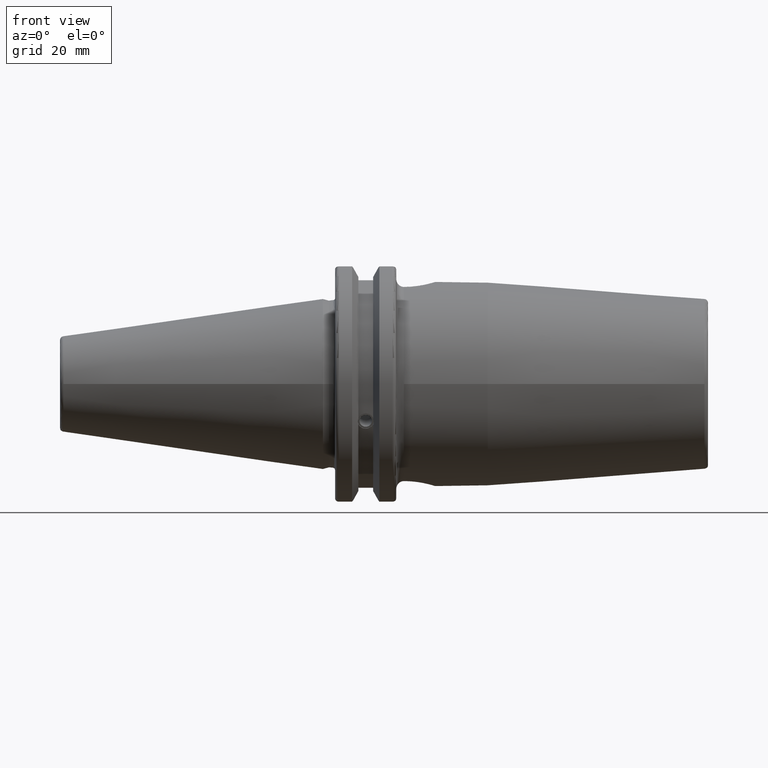
[diagram: clean part render]
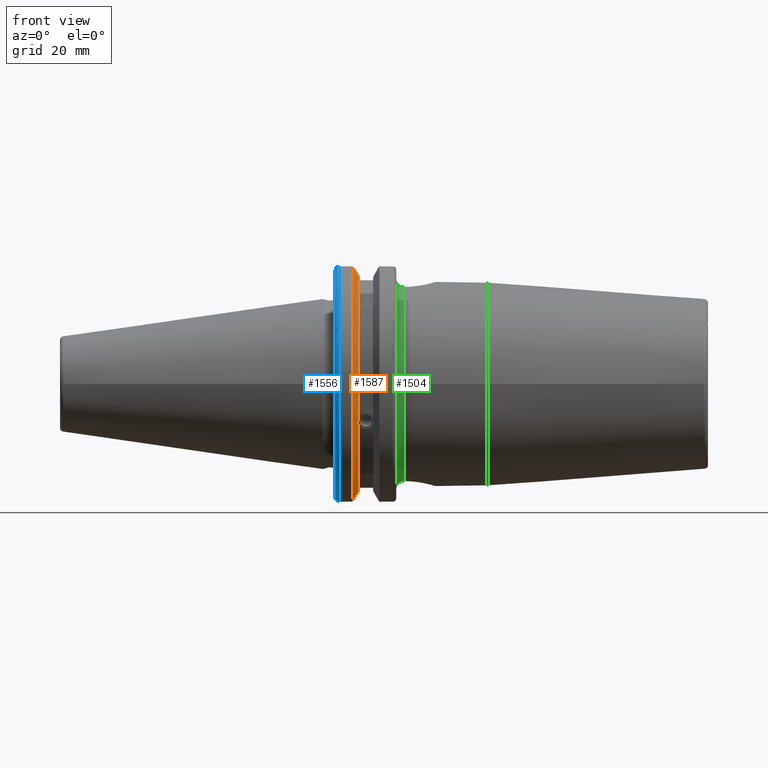
[diagram: same view with three faces highlighted in distinct colors, each labeled with its STEP entity id]
A machine part, front view with three faces highlighted in distinct colors.
Their STEP definitions:

[orange] entity #1587 — the highlighted conical surface has half-angle 60 deg.
#25=(
BOUNDED_CURVE()
B_SPLINE_CURVE(2,(#2951,#2952,#2953),.UNSPECIFIED.,.F.,.F.)
B_SPLINE_CURVE_WITH_KNOTS((3,3),(0.,0.276549142796136),.UNSPECIFIED.)
CURVE()
GEOMETRIC_REPRESENTATION_ITEM()
RATIONAL_B_SPLINE_CURVE((1.,1.00095203903316,1.00031614444813))
REPRESENTATION_ITEM('')
);
#26=(
BOUNDED_CURVE()
B_SPLINE_CURVE(2,(#2963,#2964,#2965),.UNSPECIFIED.,.F.,.F.)
B_SPLINE_CURVE_WITH_KNOTS((3,3),(0.0550586467392022,0.33160778953585),
 .UNSPECIFIED.)
CURVE()
GEOMETRIC_REPRESENTATION_ITEM()
RATIONAL_B_SPLINE_CURVE((1.00031614445148,1.00095203904325,1.))
REPRESENTATION_ITEM('')
);
#27=(
BOUNDED_CURVE()
B_SPLINE_CURVE(2,(#2998,#2999,#3000),.UNSPECIFIED.,.F.,.F.)
B_SPLINE_CURVE_WITH_KNOTS((3,3),(0.,0.0639048713676282),.UNSPECIFIED.)
CURVE()
GEOMETRIC_REPRESENTATION_ITEM()
RATIONAL_B_SPLINE_CURVE((1.,1.00028444218284,1.00047644010574))
REPRESENTATION_ITEM('')
);
#28=(
BOUNDED_CURVE()
B_SPLINE_CURVE(2,(#3006,#3007,#3008),.UNSPECIFIED.,.F.,.F.)
B_SPLINE_CURVE_WITH_KNOTS((3,3),(0.329353533631205,0.393258405001025),
 .UNSPECIFIED.)
CURVE()
GEOMETRIC_REPRESENTATION_ITEM()
RATIONAL_B_SPLINE_CURVE((1.00047644010572,1.00028444218283,1.))
REPRESENTATION_ITEM('')
);
#110=CONICAL_SURFACE('',#1790,30.3546886482472,1.0471975511966);
#205=FACE_OUTER_BOUND('',#307,.T.);
#307=EDGE_LOOP('',(#1459,#1460,#1461,#1462,#1463,#1464,#1465,#1466));
#342=CIRCLE('',#1684,28.9593772964944);
#366=CIRCLE('',#1744,31.75);
#384=CIRCLE('',#1791,28.9593772964944);
#575=B_SPLINE_CURVE_WITH_KNOTS('',3,(#2569,#2570,#2571,#2572,#2573,#2574,
#2575,#2576,#2577,#2578,#2579,#2580,#2581,#2582),.UNSPECIFIED.,.F.,.F.,
(4,2,2,2,2,2,4),(0.451995700189024,0.464547828547663,0.504528771685167,
0.544509714822672,0.584490657960178,0.624471601097683,0.63702372945632),
 .UNSPECIFIED.);
#653=VERTEX_POINT('',#2566);
#654=VERTEX_POINT('',#2568);
#671=VERTEX_POINT('',#2661);
#729=VERTEX_POINT('',#2948);
#730=VERTEX_POINT('',#2950);
#733=VERTEX_POINT('',#2962);
#737=VERTEX_POINT('',#2996);
#738=VERTEX_POINT('',#3002);
#830=EDGE_CURVE('',#654,#653,#575,.T.);
#854=EDGE_CURVE('',#654,#671,#342,.T.);
#937=EDGE_CURVE('',#730,#729,#25,.T.);
#943=EDGE_CURVE('',#733,#671,#26,.T.);
#951=EDGE_CURVE('',#737,#729,#27,.T.);
#953=EDGE_CURVE('',#737,#738,#366,.T.);
#954=EDGE_CURVE('',#733,#738,#28,.T.);
#994=EDGE_CURVE('',#730,#653,#384,.T.);
#1459=ORIENTED_EDGE('',*,*,#830,.T.);
#1460=ORIENTED_EDGE('',*,*,#994,.F.);
#1461=ORIENTED_EDGE('',*,*,#937,.T.);
#1462=ORIENTED_EDGE('',*,*,#951,.F.);
#1463=ORIENTED_EDGE('',*,*,#953,.T.);
#1464=ORIENTED_EDGE('',*,*,#954,.F.);
#1465=ORIENTED_EDGE('',*,*,#943,.T.);
#1466=ORIENTED_EDGE('',*,*,#854,.F.);
#1587=ADVANCED_FACE('',(#205),#110,.T.);
#1684=AXIS2_PLACEMENT_3D('',#2662,#1969,#1970);
#1744=AXIS2_PLACEMENT_3D('',#3004,#2128,#2129);
#1790=AXIS2_PLACEMENT_3D('',#3116,#2237,#2238);
#1791=AXIS2_PLACEMENT_3D('',#3117,#2239,#2240);
#1969=DIRECTION('center_axis',(1.,0.,0.));
#1970=DIRECTION('ref_axis',(0.,0.,-1.));
#2128=DIRECTION('center_axis',(1.,0.,0.));
#2129=DIRECTION('ref_axis',(0.,0.,-1.));
#2237=DIRECTION('center_axis',(-1.,0.,0.));
#2238=DIRECTION('ref_axis',(0.,-1.,-1.22464679914735E-16));
#2239=DIRECTION('center_axis',(1.,0.,0.));
#2240=DIRECTION('ref_axis',(0.,0.,-1.));
#2566=CARTESIAN_POINT('',(9.2191,-27.4956274489925,-9.09043478536245));
#2568=CARTESIAN_POINT('',(9.2191,-26.9060914640648,-10.7101715919071));
#2569=CARTESIAN_POINT('Ctrl Pts',(9.2191,-26.9060914640648,-10.7101715919071));
#2570=CARTESIAN_POINT('Ctrl Pts',(9.20497959280038,-26.9406927482839,-10.6893765730703));
#2571=CARTESIAN_POINT('Ctrl Pts',(9.19150701821433,-26.9744191989197,-10.6676007180673));
#2572=CARTESIAN_POINT('Ctrl Pts',(9.13811855884095,-27.1113422433189,-10.5723885976054));
#2573=CARTESIAN_POINT('Ctrl Pts',(9.09998029158246,-27.2180531796526,-10.4801333026531));
#2574=CARTESIAN_POINT('Ctrl Pts',(9.04778935539424,-27.3968610665578,-10.2639559818059));
#2575=CARTESIAN_POINT('Ctrl Pts',(9.0341,-27.4684373304961,-10.139516340139));
#2576=CARTESIAN_POINT('Ctrl Pts',(9.0341,-27.559599249844,-9.8890510252165));
#2577=CARTESIAN_POINT('Ctrl Pts',(9.04778935539424,-27.5847569104122,-9.74771639360671));
#2578=CARTESIAN_POINT('Ctrl Pts',(9.09998029158246,-27.5867382255984,-9.46717946402648));
#2579=CARTESIAN_POINT('Ctrl Pts',(9.13811855884095,-27.5642934663232,-9.32791534028655));
#2580=CARTESIAN_POINT('Ctrl Pts',(9.19150701821434,-27.5206055003512,-9.16696618806877));
#2581=CARTESIAN_POINT('Ctrl Pts',(9.20497959280038,-27.5087667900418,-9.12860597076217));
#2582=CARTESIAN_POINT('Ctrl Pts',(9.2191,-27.4956274489925,-9.09043478536245));
#2661=CARTESIAN_POINT('',(9.2191,-8.19,-27.7771386827498));
#2662=CARTESIAN_POINT('Origin',(9.2191,0.,0.));
#2948=CARTESIAN_POINT('',(7.88668530351257,-8.19,30.1755016258903));
#2950=CARTESIAN_POINT('',(9.2191,-8.19,27.7771386827498));
#2951=CARTESIAN_POINT('Ctrl Pts',(9.2191,-8.19,27.7771386827498));
#2952=CARTESIAN_POINT('Ctrl Pts',(8.58046356152393,-8.19,28.9303689539705));
#2953=CARTESIAN_POINT('Ctrl Pts',(7.88668530351257,-8.19,30.1755016258903));
#2962=CARTESIAN_POINT('',(7.88668530351256,-8.19,-30.1755016258903));
#2963=CARTESIAN_POINT('Ctrl Pts',(7.88668530351256,-8.19,-30.1755016258903));
#2964=CARTESIAN_POINT('Ctrl Pts',(8.5804635615235,-8.19,-28.9303689539712));
#2965=CARTESIAN_POINT('Ctrl Pts',(9.2191,-8.19,-27.7771386827498));
#2996=CARTESIAN_POINT('',(7.60793323092436,-8.67204822802685,30.5427254764662));
#2998=CARTESIAN_POINT('Ctrl Pts',(7.60793323092436,-8.67204822802686,30.5427254764662));
#2999=CARTESIAN_POINT('Ctrl Pts',(7.74899148121626,-8.42917748262648,30.357706789263));
#3000=CARTESIAN_POINT('Ctrl Pts',(7.88668530351257,-8.19,30.1755016258903));
#3002=CARTESIAN_POINT('',(7.60793323092436,-8.67204822802685,-30.5427254764662));
#3004=CARTESIAN_POINT('Origin',(7.60793323092436,0.,0.));
#3006=CARTESIAN_POINT('Ctrl Pts',(7.88668530351256,-8.19,-30.1755016258903));
#3007=CARTESIAN_POINT('Ctrl Pts',(7.74899148121159,-8.42917748263467,-30.3577067892692));
#3008=CARTESIAN_POINT('Ctrl Pts',(7.60793323092435,-8.67204822802687,-30.5427254764662));
#3116=CARTESIAN_POINT('Origin',(8.41351661546218,0.,0.));
#3117=CARTESIAN_POINT('Origin',(9.2191,0.,0.));

[blue] entity #1556 — the highlighted toroidal blend (fillet) surface has major radius 30.75 mm and minor (blend) radius 1 mm.
#117=TOROIDAL_SURFACE('',#1740,30.75,1.);
#174=FACE_OUTER_BOUND('',#273,.T.);
#273=EDGE_LOOP('',(#1317,#1318,#1319,#1320,#1321,#1322));
#361=CIRCLE('',#1729,30.75);
#365=CIRCLE('',#1741,31.75);
#592=B_SPLINE_CURVE_WITH_KNOTS('',3,(#2942,#2943,#2944,#2945,#2946,#2947),
 .UNSPECIFIED.,.F.,.F.,(4,2,4),(0.0977210450333167,0.111963554372601,0.150804064902975),
 .UNSPECIFIED.);
#593=B_SPLINE_CURVE_WITH_KNOTS('',3,(#2968,#2969,#2970,#2971,#2972,#2973),
 .UNSPECIFIED.,.F.,.F.,(4,2,4),(0.452741154494498,0.491581665024872,0.505824174364157),
 .UNSPECIFIED.);
#594=B_SPLINE_CURVE_WITH_KNOTS('',3,(#2977,#2978,#2979,#2980,#2981,#2982,
#2983,#2984),.UNSPECIFIED.,.F.,.F.,(4,2,2,4),(-0.104180282751877,-0.0729784742461442,
-0.0343524753874977,0.),.UNSPECIFIED.);
#595=B_SPLINE_CURVE_WITH_KNOTS('',3,(#2987,#2988,#2989,#2990,#2991,#2992,
#2993,#2994),.UNSPECIFIED.,.F.,.F.,(4,2,2,4),(0.,0.0343524753874981,0.0729784742461436,
0.104180282751876),.UNSPECIFIED.);
#713=VERTEX_POINT('',#2839);
#714=VERTEX_POINT('',#2841);
#728=VERTEX_POINT('',#2941);
#734=VERTEX_POINT('',#2966);
#735=VERTEX_POINT('',#2976);
#736=VERTEX_POINT('',#2985);
#912=EDGE_CURVE('',#714,#713,#361,.T.);
#935=EDGE_CURVE('',#728,#714,#592,.T.);
#945=EDGE_CURVE('',#713,#734,#593,.T.);
#947=EDGE_CURVE('',#734,#735,#594,.T.);
#948=EDGE_CURVE('',#735,#736,#365,.T.);
#949=EDGE_CURVE('',#736,#728,#595,.T.);
#1317=ORIENTED_EDGE('',*,*,#947,.T.);
#1318=ORIENTED_EDGE('',*,*,#948,.T.);
#1319=ORIENTED_EDGE('',*,*,#949,.T.);
#1320=ORIENTED_EDGE('',*,*,#935,.T.);
#1321=ORIENTED_EDGE('',*,*,#912,.T.);
#1322=ORIENTED_EDGE('',*,*,#945,.T.);
#1556=ADVANCED_FACE('',(#174),#117,.T.);
#1729=AXIS2_PLACEMENT_3D('',#2842,#2080,#2081);
#1740=AXIS2_PLACEMENT_3D('',#2975,#2118,#2119);
#1741=AXIS2_PLACEMENT_3D('',#2986,#2120,#2121);
#2080=DIRECTION('center_axis',(1.,0.,0.));
#2081=DIRECTION('ref_axis',(0.,-1.,1.60812264967664E-16));
#2118=DIRECTION('center_axis',(1.,0.,0.));
#2119=DIRECTION('ref_axis',(0.,0.,-1.));
#2120=DIRECTION('center_axis',(-1.,0.,0.));
#2121=DIRECTION('ref_axis',(0.,-1.,1.60812264967664E-16));
#2839=CARTESIAN_POINT('',(3.175,-8.19,-29.6392712461019));
#2841=CARTESIAN_POINT('',(3.175,-8.18999999999999,29.6392712461019));
#2842=CARTESIAN_POINT('Origin',(3.175,0.,0.));
#2941=CARTESIAN_POINT('',(3.31912772509028,-8.19,30.1755016258903));
#2942=CARTESIAN_POINT('Ctrl Pts',(3.31912772509028,-8.19,30.1755016258903));
#2943=CARTESIAN_POINT('Ctrl Pts',(3.29318362718666,-8.19,30.131014531546));
#2944=CARTESIAN_POINT('Ctrl Pts',(3.27103565282437,-8.19,30.0852355256475));
#2945=CARTESIAN_POINT('Ctrl Pts',(3.20451443291695,-8.19,29.9212724384851));
#2946=CARTESIAN_POINT('Ctrl Pts',(3.175,-8.19,29.7687396145364));
#2947=CARTESIAN_POINT('Ctrl Pts',(3.175,-8.19,29.6392712461019));
#2966=CARTESIAN_POINT('',(3.31912772509028,-8.19,-30.1755016258903));
#2968=CARTESIAN_POINT('Ctrl Pts',(3.175,-8.19,-29.6392712461018));
#2969=CARTESIAN_POINT('Ctrl Pts',(3.175,-8.19,-29.7687396145364));
#2970=CARTESIAN_POINT('Ctrl Pts',(3.20451443291695,-8.19,-29.9212724384851));
#2971=CARTESIAN_POINT('Ctrl Pts',(3.27103565282437,-8.19,-30.0852355256475));
#2972=CARTESIAN_POINT('Ctrl Pts',(3.29318362718666,-8.19,-30.131014531546));
#2973=CARTESIAN_POINT('Ctrl Pts',(3.31912772509028,-8.19,-30.1755016258903));
#2975=CARTESIAN_POINT('Origin',(4.175,0.,0.));
#2976=CARTESIAN_POINT('',(4.175,-8.67204822802685,-30.5427254764662));
#2977=CARTESIAN_POINT('Ctrl Pts',(3.31912772509028,-8.19,-30.1755016258903));
#2978=CARTESIAN_POINT('Ctrl Pts',(3.36755369570113,-8.27036828330781,-30.2367261024977));
#2979=CARTESIAN_POINT('Ctrl Pts',(3.43232973376814,-8.34909446036477,-30.2966996242308));
#2980=CARTESIAN_POINT('Ctrl Pts',(3.58532758094931,-8.48862804755884,-30.4029961692546));
#2981=CARTESIAN_POINT('Ctrl Pts',(3.70655857052286,-8.56482138642532,-30.4610401774263));
#2982=CARTESIAN_POINT('Ctrl Pts',(3.92668295662254,-8.6471881193939,-30.5237870709558));
#2983=CARTESIAN_POINT('Ctrl Pts',(4.06049174870834,-8.67204822802686,-30.5427254764662));
#2984=CARTESIAN_POINT('Ctrl Pts',(4.175,-8.67204822802686,-30.5427254764662));
#2985=CARTESIAN_POINT('',(4.175,-8.67204822802685,30.5427254764662));
#2986=CARTESIAN_POINT('Origin',(4.175,0.,0.));
#2987=CARTESIAN_POINT('Ctrl Pts',(4.175,-8.67204822802686,30.5427254764662));
#2988=CARTESIAN_POINT('Ctrl Pts',(4.06049174870834,-8.67204822802686,30.5427254764662));
#2989=CARTESIAN_POINT('Ctrl Pts',(3.92668295662254,-8.64718811939389,30.5237870709558));
#2990=CARTESIAN_POINT('Ctrl Pts',(3.70655857052286,-8.56482138642532,30.4610401774263));
#2991=CARTESIAN_POINT('Ctrl Pts',(3.58532758094931,-8.48862804755884,30.4029961692546));
#2992=CARTESIAN_POINT('Ctrl Pts',(3.43232973376814,-8.34909446036478,30.2966996242308));
#2993=CARTESIAN_POINT('Ctrl Pts',(3.36755369570113,-8.2703682833078,30.2367261024977));
#2994=CARTESIAN_POINT('Ctrl Pts',(3.31912772509028,-8.19,30.1755016258903));

[green] entity #1504 — the highlighted toroidal blend (fillet) surface has major radius 28.5 mm and minor (blend) radius 2 mm.
#111=TOROIDAL_SURFACE('',#1619,28.5,2.);
#122=FACE_OUTER_BOUND('',#209,.T.);
#209=EDGE_LOOP('',(#1011,#1012,#1013,#1014,#1015,#1016,#1017,#1018));
#311=CIRCLE('',#1616,26.5);
#313=CIRCLE('',#1618,26.5);
#314=CIRCLE('',#1620,28.5);
#558=B_SPLINE_CURVE_WITH_KNOTS('',3,(#2258,#2259,#2260,#2261),
 .UNSPECIFIED.,.F.,.F.,(4,4),(-0.00650170166186683,0.),.UNSPECIFIED.);
#561=B_SPLINE_CURVE_WITH_KNOTS('',3,(#2314,#2315,#2316,#2317,#2318,#2319),
 .UNSPECIFIED.,.F.,.F.,(4,2,4),(0.611963292187147,0.678472093757732,0.707811164416638),
 .UNSPECIFIED.);
#562=B_SPLINE_CURVE_WITH_KNOTS('',3,(#2321,#2322,#2323,#2324,#2325,#2326,
#2327,#2328),.UNSPECIFIED.,.F.,.F.,(4,2,2,4),(0.707811164416563,0.753289050617111,
0.830261667572551,0.908757487348896),.UNSPECIFIED.);
#563=B_SPLINE_CURVE_WITH_KNOTS('',3,(#2332,#2333,#2334,#2335,#2336,#2337,
#2338,#2339,#2340,#2341),.UNSPECIFIED.,.F.,.F.,(4,2,2,2,4),(0.30235413598056,
0.380849955756906,0.457822572712345,0.532639529571725,0.599148331142492),
 .UNSPECIFIED.);
#564=B_SPLINE_CURVE_WITH_KNOTS('',3,(#2342,#2343,#2344,#2345),
 .UNSPECIFIED.,.F.,.F.,(4,4),(0.599148331142492,0.605555811664728),
 .UNSPECIFIED.);
#603=VERTEX_POINT('',#2255);
#604=VERTEX_POINT('',#2257);
#606=VERTEX_POINT('',#2283);
#607=VERTEX_POINT('',#2285);
#611=VERTEX_POINT('',#2313);
#612=VERTEX_POINT('',#2320);
#613=VERTEX_POINT('',#2329);
#614=VERTEX_POINT('',#2331);
#761=EDGE_CURVE('',#604,#603,#558,.T.);
#765=EDGE_CURVE('',#607,#606,#311,.T.);
#770=EDGE_CURVE('',#606,#604,#313,.T.);
#771=EDGE_CURVE('',#603,#611,#561,.T.);
#772=EDGE_CURVE('',#611,#612,#562,.T.);
#773=EDGE_CURVE('',#612,#613,#314,.T.);
#774=EDGE_CURVE('',#614,#613,#563,.F.);
#775=EDGE_CURVE('',#607,#614,#564,.F.);
#1011=ORIENTED_EDGE('',*,*,#761,.T.);
#1012=ORIENTED_EDGE('',*,*,#771,.T.);
#1013=ORIENTED_EDGE('',*,*,#772,.T.);
#1014=ORIENTED_EDGE('',*,*,#773,.T.);
#1015=ORIENTED_EDGE('',*,*,#774,.F.);
#1016=ORIENTED_EDGE('',*,*,#775,.F.);
#1017=ORIENTED_EDGE('',*,*,#765,.T.);
#1018=ORIENTED_EDGE('',*,*,#770,.T.);
#1504=ADVANCED_FACE('',(#122),#111,.F.);
#1616=AXIS2_PLACEMENT_3D('',#2286,#1806,#1807);
#1618=AXIS2_PLACEMENT_3D('',#2311,#1812,#1813);
#1619=AXIS2_PLACEMENT_3D('',#2312,#1814,#1815);
#1620=AXIS2_PLACEMENT_3D('',#2330,#1816,#1817);
#1806=DIRECTION('center_axis',(-1.,0.,0.));
#1807=DIRECTION('ref_axis',(0.,-0.999990043367962,0.00446241693951007));
#1812=DIRECTION('center_axis',(-1.,0.,0.));
#1813=DIRECTION('ref_axis',(0.,-0.999990043367962,0.00446241693951007));
#1814=DIRECTION('center_axis',(-1.,0.,0.));
#1815=DIRECTION('ref_axis',(0.,0.,1.));
#1816=DIRECTION('center_axis',(1.,0.,0.));
#1817=DIRECTION('ref_axis',(0.,-0.999990043367962,0.00446241693951007));
#2255=CARTESIAN_POINT('',(20.985,-8.19000000000002,25.2037675190955));
#2257=CARTESIAN_POINT('',(21.05,-8.18974205943019,25.2027404263902));
#2258=CARTESIAN_POINT('Ctrl Pts',(21.05,-8.18974205943019,25.2027404263902));
#2259=CARTESIAN_POINT('Ctrl Pts',(21.028328846,-8.18991405813293,25.2026845346504));
#2260=CARTESIAN_POINT('Ctrl Pts',(21.0066596822934,-8.18999999999999,25.2030269550051));
#2261=CARTESIAN_POINT('Ctrl Pts',(20.985,-8.18999999999999,25.2037675190955));
#2283=CARTESIAN_POINT('',(21.05,-26.5,-3.24531401774049E-15));
#2285=CARTESIAN_POINT('',(21.05,-8.19,-25.2026566060009));
#2286=CARTESIAN_POINT('Origin',(21.05,0.,0.));
#2311=CARTESIAN_POINT('Origin',(21.05,0.,0.));
#2312=CARTESIAN_POINT('Origin',(21.05,0.,0.));
#2313=CARTESIAN_POINT('',(20.0244662958217,-8.19000000000165,25.5000000000049));
#2314=CARTESIAN_POINT('Ctrl Pts',(20.985,-8.19000000000002,25.2037675190955));
#2315=CARTESIAN_POINT('Ctrl Pts',(20.7571587980538,-8.19000000000002,25.2115576154689));
#2316=CARTESIAN_POINT('Ctrl Pts',(20.5016668821134,-8.19000000000002,25.2700465210143));
#2317=CARTESIAN_POINT('Ctrl Pts',(20.2077952907399,-8.19000000000002,25.3954068244709));
#2318=CARTESIAN_POINT('Ctrl Pts',(20.1144192970305,-8.19000000000002,25.4435713938449));
#2319=CARTESIAN_POINT('Ctrl Pts',(20.0244662958225,-8.19000000000002,25.5000000000061));
#2320=CARTESIAN_POINT('',(19.05,-8.19,27.2978735435565));
#2321=CARTESIAN_POINT('Ctrl Pts',(20.0244662958232,-8.19,25.5000000000057));
#2322=CARTESIAN_POINT('Ctrl Pts',(19.8850320103989,-8.19,25.5874688145189));
#2323=CARTESIAN_POINT('Ctrl Pts',(19.7543453755304,-8.19,25.695636986831));
#2324=CARTESIAN_POINT('Ctrl Pts',(19.4700477206645,-8.19,25.9885127973065));
#2325=CARTESIAN_POINT('Ctrl Pts',(19.3031737487845,-8.19,26.2472590391816));
#2326=CARTESIAN_POINT('Ctrl Pts',(19.1094531968333,-8.19,26.7279176858725));
#2327=CARTESIAN_POINT('Ctrl Pts',(19.05,-8.19,27.0362208109687));
#2328=CARTESIAN_POINT('Ctrl Pts',(19.05,-8.19,27.2978735435565));
#2329=CARTESIAN_POINT('',(19.05,-8.19,-27.2978735435565));
#2330=CARTESIAN_POINT('Origin',(19.05,0.,0.));
#2331=CARTESIAN_POINT('',(20.985,-8.18999999999999,-25.2037675190955));
#2332=CARTESIAN_POINT('Ctrl Pts',(19.05,-8.19,-27.2978735435565));
#2333=CARTESIAN_POINT('Ctrl Pts',(19.05,-8.19,-27.0362208109687));
#2334=CARTESIAN_POINT('Ctrl Pts',(19.1094531968333,-8.19,-26.7279176858725));
#2335=CARTESIAN_POINT('Ctrl Pts',(19.3031737487845,-8.19,-26.2472590391816));
#2336=CARTESIAN_POINT('Ctrl Pts',(19.4700477206645,-8.19,-25.9885127973065));
#2337=CARTESIAN_POINT('Ctrl Pts',(19.8224629313532,-8.19,-25.6254641098208));
#2338=CARTESIAN_POINT('Ctrl Pts',(20.0683591355164,-8.19,-25.4548877652789));
#2339=CARTESIAN_POINT('Ctrl Pts',(20.501666882114,-8.19,-25.2700465210141));
#2340=CARTESIAN_POINT('Ctrl Pts',(20.7571587980552,-8.19,-25.2115576154686));
#2341=CARTESIAN_POINT('Ctrl Pts',(20.9850000000019,-8.19,-25.2037675190955));
#2342=CARTESIAN_POINT('Ctrl Pts',(20.9850000000019,-8.19,-25.2037675190955));
#2343=CARTESIAN_POINT('Ctrl Pts',(21.0069502987467,-8.19,-25.2030170185662));
#2344=CARTESIAN_POINT('Ctrl Pts',(21.0286417315925,-8.19,-25.2026566060009));
#2345=CARTESIAN_POINT('Ctrl Pts',(21.05,-8.19,-25.2026566060009));